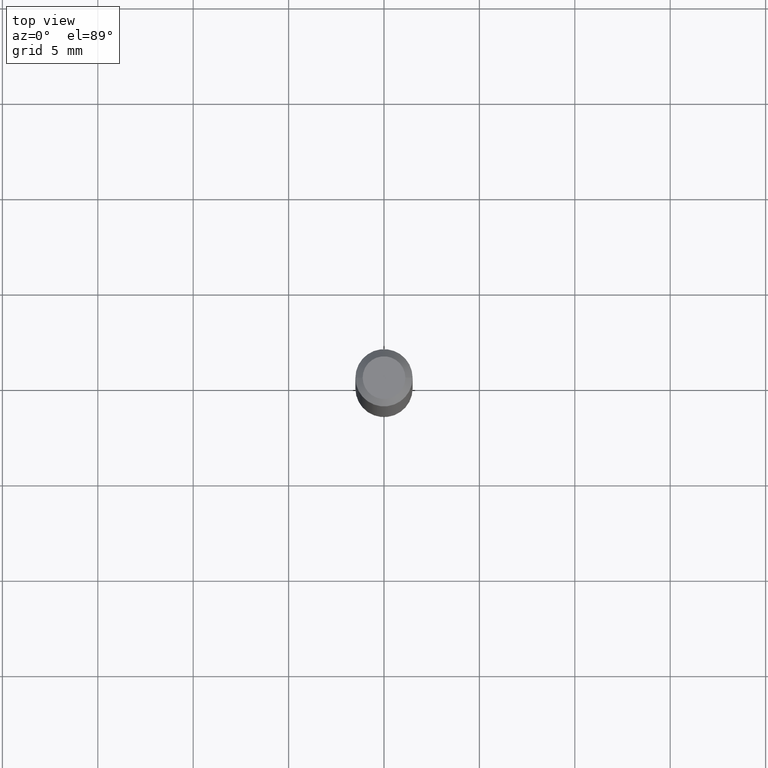
[diagram: clean part render]
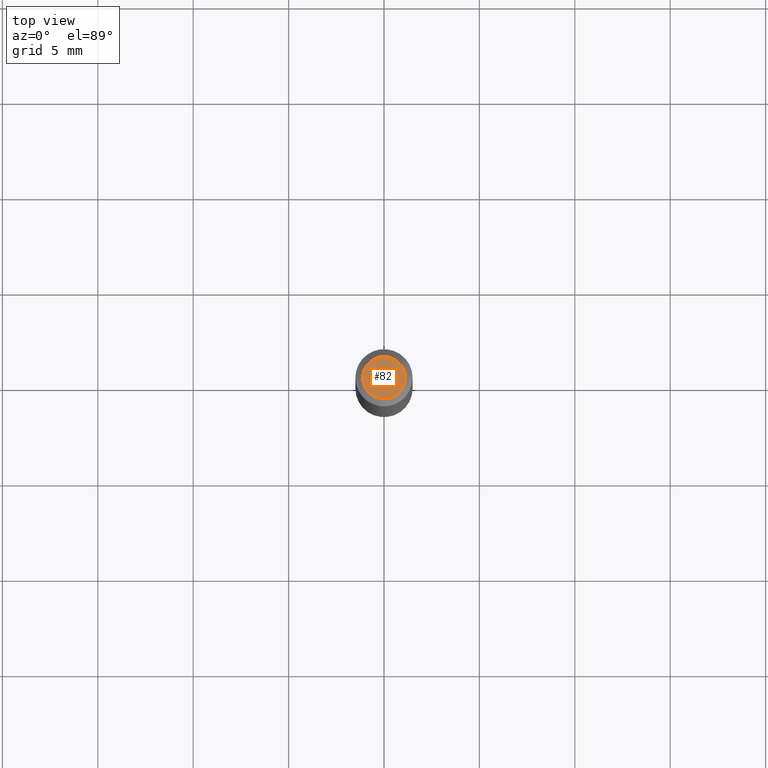
[diagram: same view with one face highlighted and labeled with its STEP entity id]
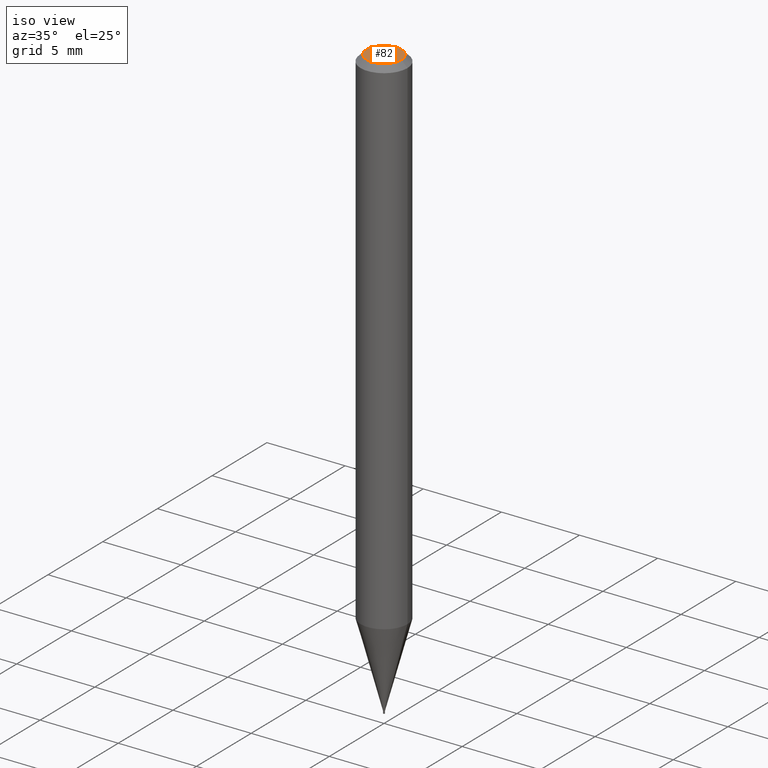
[diagram: same view with one face highlighted and labeled with its STEP entity id]
A machine part, top view. The second image highlights one B-rep face of the part: STEP entity #82.
A second angle (iso view) of the same face is appended — the face is thin or edge-on in the first view.
In plain terms, the highlighted planar face has unit normal (0, -0, -1).
Its self-contained STEP definition (entity closure, byte-faithful):
#10 = FACE_OUTER_BOUND ( 'NONE', #461, .T. ) ;
#13 = DIRECTION ( 'NONE',  ( -2.445468806185136597E-29, 3.491481338843145583E-15, 1.000000000000000000 ) ) ;
#45 = DIRECTION ( 'NONE',  ( 2.438088387897960049E-29, -3.491481338843145188E-15, -1.000000000000000000 ) ) ;
#55 = AXIS2_PLACEMENT_3D ( 'NONE', #439, #13, #81 ) ;
#81 = DIRECTION ( 'NONE',  ( 1.000000000000000000, -6.982962677686265922E-15, 4.957392940945096353E-29 ) ) ;
#82 = ADVANCED_FACE ( 'NONE', ( #10 ), #293, .F. ) ;
#88 = DIRECTION ( 'NONE',  ( -2.445468806185136597E-29, 3.491481338843145583E-15, 1.000000000000000000 ) ) ;
#130 = CARTESIAN_POINT ( 'NONE',  ( -0.04404999999999999888, 3.337856159934058298E-16, 1.385648594563828748E-15 ) ) ;
#140 = ORIENTED_EDGE ( 'NONE', *, *, #299, .T. ) ;
#158 = EDGE_CURVE ( 'NONE', #381, #417, #387, .T. ) ;
#193 = CARTESIAN_POINT ( 'NONE',  ( 3.075995059520799729E-16, 0.04404999999999999888, 5.390245443058748806E-16 ) ) ;
#237 = CARTESIAN_POINT ( 'NONE',  ( -3.388560414340124120E-44, 4.837966210113847534E-30, 1.385648594563830917E-15 ) ) ;
#277 = ORIENTED_EDGE ( 'NONE', *, *, #158, .T. ) ;
#293 = PLANE ( 'NONE',  #378 ) ;
#299 = EDGE_CURVE ( 'NONE', #417, #381, #361, .T. ) ;
#303 = DIRECTION ( 'NONE',  ( 1.000000000000000000, -6.982962677686265922E-15, 4.957392940945096353E-29 ) ) ;
#333 = AXIS2_PLACEMENT_3D ( 'NONE', #237, #88, #303 ) ;
#346 = CARTESIAN_POINT ( 'NONE',  ( 0.04404999999999999888, -3.798447818264435920E-16, 1.385648594563833284E-15 ) ) ;
#361 = CIRCLE ( 'NONE', #333, 0.04404999999999999888 ) ;
#369 = DIRECTION ( 'NONE',  ( -1.000000000000000000, 6.982962677686265922E-15, -4.876176775795935793E-29 ) ) ;
#378 = AXIS2_PLACEMENT_3D ( 'NONE', #193, #45, #369 ) ;
#381 = VERTEX_POINT ( 'NONE', #130 ) ;
#387 = CIRCLE ( 'NONE', #55, 0.04404999999999999888 ) ;
#417 = VERTEX_POINT ( 'NONE', #346 ) ;
#439 = CARTESIAN_POINT ( 'NONE',  ( -3.388560414340124120E-44, 4.837966210113847534E-30, 1.385648594563830917E-15 ) ) ;
#461 = EDGE_LOOP ( 'NONE', ( #277, #140 ) ) ;